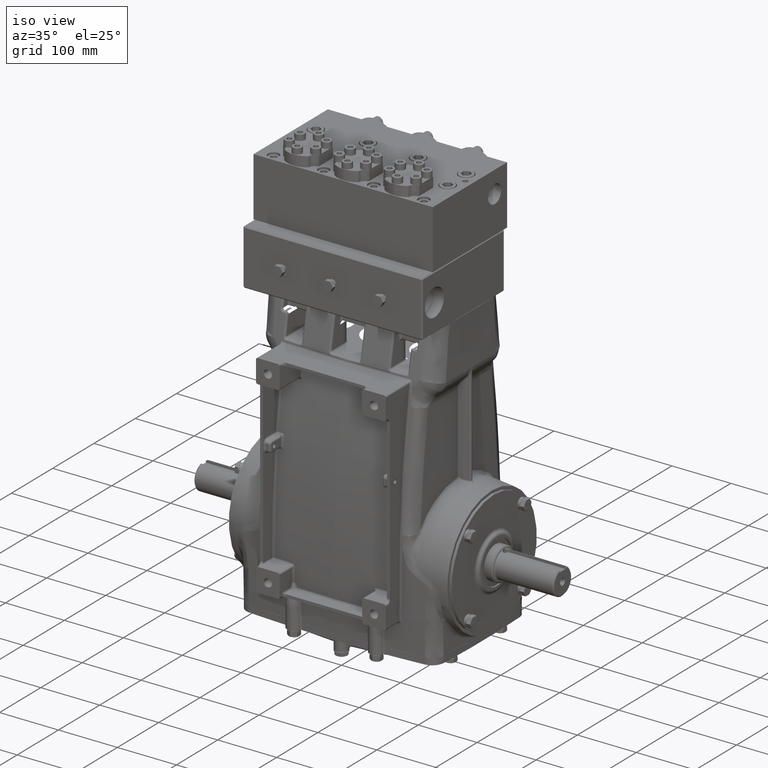
[diagram: clean part render]
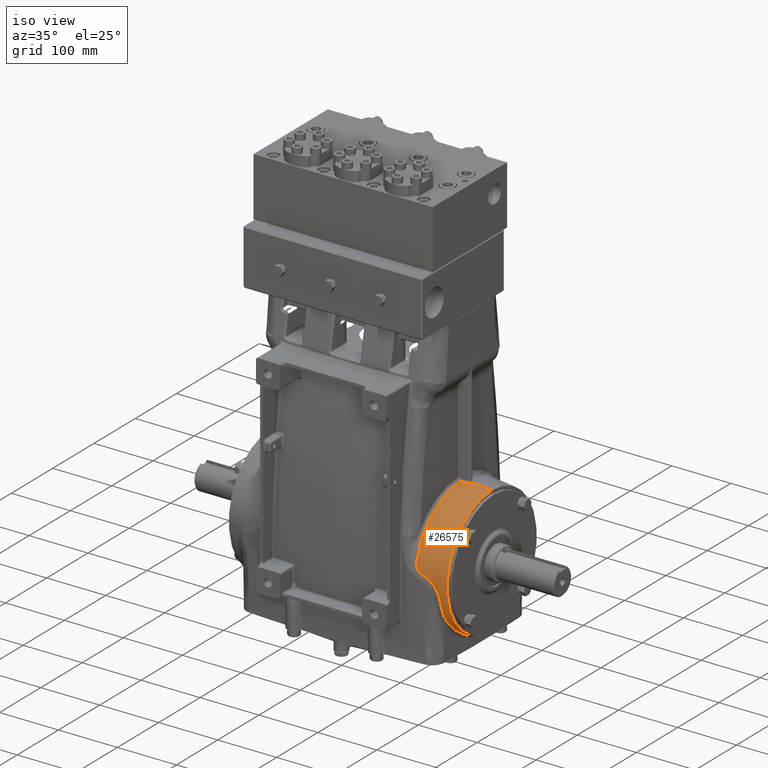
[diagram: same view with one face highlighted and labeled with its STEP entity id]
A machine part, iso view. The second image highlights one B-rep face of the part: STEP entity #26575.
In plain terms, the highlighted toroidal blend (fillet) surface has major radius 1682.47 mm and minor (blend) radius 1800 mm.
Its self-contained STEP definition (entity closure, byte-faithful):
#1526 = CARTESIAN_POINT ( 'NONE',  ( 5.852955202024553216, -0.2223837610835557310, 4.379492462996530833 ) ) ;
#1874 = CARTESIAN_POINT ( 'NONE',  ( 5.272707248386626411, -4.294867719572655673, 1.090123331563444431 ) ) ;
#1933 = CARTESIAN_POINT ( 'NONE',  ( 5.536433083215809070, -0.2630354512652037791, 4.403024985947181058 ) ) ;
#2041 = ORIENTED_EDGE ( 'NONE', *, *, #9779, .T. ) ;
#2049 = EDGE_CURVE ( 'NONE', #63809, #49967, #41670, .T. ) ;
#2296 = CARTESIAN_POINT ( 'NONE',  ( 5.844193351167364270, -4.373260214403690505, 0.3322168157031424318 ) ) ;
#2682 = CARTESIAN_POINT ( 'NONE',  ( 5.247411923045981474, -3.859052718399690107, 2.183396931741775404 ) ) ;
#2989 = CARTESIAN_POINT ( 'NONE',  ( 5.305554065077120462, -3.094440689571299252, 3.172438463871714021 ) ) ;
#3064 = EDGE_CURVE ( 'NONE', #41624, #7347, #22884, .T. ) ;
#3491 = CARTESIAN_POINT ( 'NONE',  ( 5.279394247839360510, -3.954163940247277687, 2.000746350159208653 ) ) ;
#3872 = CARTESIAN_POINT ( 'NONE',  ( 5.852955202024553216, -0.2223837610835557310, 4.379492462996530833 ) ) ;
#4431 = CARTESIAN_POINT ( 'NONE',  ( 6.051648102136713447, -0.02707801973792460515, 4.368323479826626610 ) ) ;
#4692 = EDGE_CURVE ( 'NONE', #57575, #26342, #43030, .T. ) ;
#4996 = CARTESIAN_POINT ( 'NONE',  ( 7.283464566929135131, 0.000000000000000000, 0.000000000000000000 ) ) ;
#6422 = ORIENTED_EDGE ( 'NONE', *, *, #10870, .F. ) ;
#6951 = DIRECTION ( 'NONE',  ( 0.000000000000000000, 0.000000000000000000, -1.000000000000000000 ) ) ;
#7110 = B_SPLINE_CURVE_WITH_KNOTS ( 'NONE', 3,
 ( #7746, #1933, #52739, #1526 ),
 .UNSPECIFIED., .F., .F.,
 ( 4, 4 ),
 ( 0.000000000000000000, 0.01219153341270861821 ),
 .UNSPECIFIED. ) ;
#7347 = VERTEX_POINT ( 'NONE', #63990 ) ;
#7746 = CARTESIAN_POINT ( 'NONE',  ( 5.378102843281687306, -0.2833750621948362136, 4.413794543378174673 ) ) ;
#8441 = DIRECTION ( 'NONE',  ( 0.000000000000000000, 1.224646799147352961E-16, -1.000000000000000000 ) ) ;
#8611 = ORIENTED_EDGE ( 'NONE', *, *, #20914, .F. ) ;
#8853 = ORIENTED_EDGE ( 'NONE', *, *, #58959, .F. ) ;
#8902 = CARTESIAN_POINT ( 'NONE',  ( 5.298679227192500285, -3.999764358339298109, 1.904925093639504574 ) ) ;
#9302 = CARTESIAN_POINT ( 'NONE',  ( 5.517144454320157543, -4.381478763568151358, 0.5205835945631215322 ) ) ;
#9384 = CARTESIAN_POINT ( 'NONE',  ( 6.751257222769448063, -3.973461088132392849, -1.662222356534559964 ) ) ;
#9468 = CARTESIAN_POINT ( 'NONE',  ( 6.865251969672192089, -0.8573492751160255443, -4.210950569600599103 ) ) ;
#9779 = EDGE_CURVE ( 'NONE', #34809, #49967, #20113, .T. ) ;
#9790 = CARTESIAN_POINT ( 'NONE',  ( 6.748286128374594739, -4.228220533290194538, -0.8188450398265303409 ) ) ;
#9906 = CARTESIAN_POINT ( 'NONE',  ( 6.870678561282303143, -7.016679833183544726E-07, -4.293398809832874363 ) ) ;
#10704 = CARTESIAN_POINT ( 'NONE',  ( 6.820232917902483649, -2.577171364062633252, -3.457293053597027210 ) ) ;
#10870 = EDGE_CURVE ( 'NONE', #38661, #63809, #7110, .T. ) ;
#11064 = CARTESIAN_POINT ( 'NONE',  ( 5.999597013839331971, -0.1437538826542380244, 4.370468212335666180 ) ) ;
#12387 = CARTESIAN_POINT ( 'NONE',  ( 6.775299052505742381, -3.525163633873232616, -2.466941749245176840 ) ) ;
#12671 = AXIS2_PLACEMENT_3D ( 'NONE', #51838, #64247, #13437 ) ;
#13437 = DIRECTION ( 'NONE',  ( 0.000000000000000000, 0.000000000000000000, 1.000000000000000000 ) ) ;
#13662 = ORIENTED_EDGE ( 'NONE', *, *, #58756, .F. ) ;
#13773 = CARTESIAN_POINT ( 'NONE',  ( 5.311372473586140508, -2.969675108898805149, 3.288849114587791167 ) ) ;
#13983 = AXIS2_PLACEMENT_3D ( 'NONE', #18945, #81734, #6951 ) ;
#14183 = CARTESIAN_POINT ( 'NONE',  ( 5.344049568516499704, -2.134996431482719892, 3.880213789637583233 ) ) ;
#14580 = CARTESIAN_POINT ( 'NONE',  ( 5.328308740857626624, -2.571147506962262685, 3.607441197599436045 ) ) ;
#14680 = CARTESIAN_POINT ( 'NONE',  ( 5.285113458666180541, -4.270888028797585889, 1.176226875336369604 ) ) ;
#15093 = CARTESIAN_POINT ( 'NONE',  ( 5.451664848992066936, -4.378099481651035241, 0.5877808797868278035 ) ) ;
#15895 = CARTESIAN_POINT ( 'NONE',  ( 5.322501773437188000, -4.086887850304838032, 1.705387865584996554 ) ) ;
#15983 = CARTESIAN_POINT ( 'NONE',  ( 6.732006985056554704, -3.858916769252031198, -1.913639516622791970 ) ) ;
#16068 = CARTESIAN_POINT ( 'NONE',  ( 6.860023595601003166, -1.190177354515004948, -4.129769881778680762 ) ) ;
#17290 = CARTESIAN_POINT ( 'NONE',  ( 6.052903952729693948, 4.590736594374214136E-13, 4.368279199505273880 ) ) ;
#17653 = CARTESIAN_POINT ( 'NONE',  ( 5.985930046695572493, -0.1587953005735745493, 4.371117250021246292 ) ) ;
#18071 = CARTESIAN_POINT ( 'NONE',  ( 5.942668485757020669, -0.1919606028169323908, 4.373437235909047871 ) ) ;
#18829 = B_SPLINE_CURVE_WITH_KNOTS ( 'NONE', 3,
 ( #66965, #66548, #41315, #34713 ),
 .UNSPECIFIED., .F., .F.,
 ( 4, 4 ),
 ( 0.000000000000000000, 1.000000000000000000 ),
 .UNSPECIFIED. ) ;
#18945 = CARTESIAN_POINT ( 'NONE',  ( 0.000000000000000000, 0.000000000000000000, 0.000000000000000000 ) ) ;
#20113 = CIRCLE ( 'NONE', #24068, 70.86614173228348079 ) ;
#20748 = CARTESIAN_POINT ( 'NONE',  ( 5.285113458666180541, -4.270888028797585889, 1.176226875336369604 ) ) ;
#20891 = CARTESIAN_POINT ( 'NONE',  ( 5.422180608947891223, -4.375435119389920580, 0.6238571609670103824 ) ) ;
#20914 = EDGE_CURVE ( 'NONE', #64571, #78984, #63289, .T. ) ;
#21239 = CARTESIAN_POINT ( 'NONE',  ( 0.000000000000000000, 8.111924509794331596E-15, -66.23889039225161923 ) ) ;
#22093 = CARTESIAN_POINT ( 'NONE',  ( 5.315464104699231029, -4.205820647796510769, 1.385050740735087604 ) ) ;
#22884 = B_SPLINE_CURVE_WITH_KNOTS ( 'NONE', 3,
 ( #78265, #40276, #71679, #22902, #59297, #66306, #72904, #72492, #41484, #22093, #53893, #48113, #15895, #8902, #3491, #2682, #60505, #28282 ),
 .UNSPECIFIED., .F., .F.,
 ( 4, 2, 2, 2, 2, 2, 2, 2, 4 ),
 ( 0.000000000000000000, 0.06249999999999822364, 0.09374999999999700240, 0.1093749999999966693, 0.1249999999999962252, 0.2499999999999970024, 0.4999999999999980016, 0.7499999999999990008, 1.000000000000000000 ),
 .UNSPECIFIED. ) ;
#22902 = CARTESIAN_POINT ( 'NONE',  ( 5.299805872300813903, -4.244816495595885364, 1.263305058221047439 ) ) ;
#22996 = CARTESIAN_POINT ( 'NONE',  ( 6.763537446397453579, -4.021914108856399217, -1.537326311682541302 ) ) ;
#23081 = CARTESIAN_POINT ( 'NONE',  ( 6.831004197742318595, -2.294284259440460438, -3.649769598272576854 ) ) ;
#23423 = CARTESIAN_POINT ( 'NONE',  ( 6.743573656633750524, -3.722442431694437115, -2.163832518601332300 ) ) ;
#23831 = EDGE_CURVE ( 'NONE', #26342, #48606, #79479, .T. ) ;
#23846 = CARTESIAN_POINT ( 'NONE',  ( 6.032930112428863012, -0.09242468186657722129, 4.369029578196892416 ) ) ;
#24068 = AXIS2_PLACEMENT_3D ( 'NONE', #21239, #46442, #8441 ) ;
#26342 = VERTEX_POINT ( 'NONE', #9906 ) ;
#26575 = ADVANCED_FACE ( 'NONE', ( #68932 ), #50909, .T. ) ;
#26583 = CARTESIAN_POINT ( 'NONE',  ( 5.373400732647899858, -0.8532227448024319871, 4.343542629447428638 ) ) ;
#27458 = CARTESIAN_POINT ( 'NONE',  ( 5.844193351167364270, -4.373260214403690505, 0.3322168157031424318 ) ) ;
#27505 = CARTESIAN_POINT ( 'NONE',  ( 5.370155640733947244, -4.367796750704077802, 0.7007961736465971869 ) ) ;
#27978 = CARTESIAN_POINT ( 'NONE',  ( 6.775341309454397276, -4.142075560462384232, -1.170764074513447994 ) ) ;
#28138 = CARTESIAN_POINT ( 'NONE',  ( 7.283464566929135131, -5.318640310989227753E-16, 4.251968503937008315 ) ) ;
#28282 = CARTESIAN_POINT ( 'NONE',  ( 5.248968017850662804, -3.757802493684161860, 2.350912471810728821 ) ) ;
#28350 = EDGE_CURVE ( 'NONE', #78984, #41624, #68894, .T. ) ;
#28456 = CARTESIAN_POINT ( 'NONE',  ( 6.780627805836091149, -3.426737915178359906, -2.606695610396578378 ) ) ;
#28916 = CARTESIAN_POINT ( 'NONE',  ( 7.283464566929135131, 0.000000000000000000, -4.251968503937008315 ) ) ;
#29225 = CARTESIAN_POINT ( 'NONE',  ( 6.016060877531117512, -0.1219615921566095523, 4.369730204853508937 ) ) ;
#29341 = CARTESIAN_POINT ( 'NONE',  ( 6.259927872760701284, -4.349469049773776241, 0.1078216968110770335 ) ) ;
#29604 = CARTESIAN_POINT ( 'NONE',  ( 6.733010291754432330, -3.759610759201880370, -2.101901146844580293 ) ) ;
#29761 = CARTESIAN_POINT ( 'NONE',  ( 6.771535892921622946, -3.594669634161339999, -2.368249819606353057 ) ) ;
#30137 = AXIS2_PLACEMENT_3D ( 'NONE', #4996, #43379, #55785 ) ;
#30448 = CARTESIAN_POINT ( 'NONE',  ( 5.880136266687283175, -0.2188931460258252415, 4.377414182146014632 ) ) ;
#31955 = VERTEX_POINT ( 'NONE', #59237 ) ;
#33266 = CARTESIAN_POINT ( 'NONE',  ( 5.752441769183374021, -4.378549673246697971, 0.3628208985375411810 ) ) ;
#34173 = CARTESIAN_POINT ( 'NONE',  ( 6.775255238092878329, -4.106237101414809132, -1.291628640390572569 ) ) ;
#34488 = CARTESIAN_POINT ( 'NONE',  ( 5.276690929012856301, -4.283285936618400846, 1.133582297244710269 ) ) ;
#34645 = CARTESIAN_POINT ( 'NONE',  ( 6.856809519440165701, -1.354194542049224292, -4.079312160929956299 ) ) ;
#34713 = CARTESIAN_POINT ( 'NONE',  ( 5.282505213801603539, -3.545457832260765052, 2.656209857009934616 ) ) ;
#34798 = B_SPLINE_CURVE_WITH_KNOTS ( 'NONE', 3,
 ( #23423, #29604, #41580, #15983, #65975, #9384, #22996, #34173, #27978, #66394, #9790, #60183 ),
 .UNSPECIFIED., .F., .F.,
 ( 4, 2, 2, 2, 2, 4 ),
 ( 0.000000000000000000, 0.1250000000000000000, 0.2500000000000000555, 0.5000000000000001110, 0.7499999999999998890, 1.000000000000000000 ),
 .UNSPECIFIED. ) ;
#34809 = VERTEX_POINT ( 'NONE', #28138 ) ;
#35135 = CARTESIAN_POINT ( 'NONE',  ( 6.674896930597528311, -4.288025212472038383, -0.4690990319293643629 ) ) ;
#35434 = CARTESIAN_POINT ( 'NONE',  ( 6.042792963683599083, -0.06715152792656177427, 4.368647610304564388 ) ) ;
#35547 = CARTESIAN_POINT ( 'NONE',  ( 6.504362361912054524, -4.326456405689325990, -0.1516320365700909445 ) ) ;
#35836 = CARTESIAN_POINT ( 'NONE',  ( 6.046612562164687787, -0.05385365598223208067, 4.368506876215717760 ) ) ;
#35889 = CARTESIAN_POINT ( 'NONE',  ( 6.803225976632730543, -2.967570816868583705, -3.116539558899000362 ) ) ;
#36240 = CARTESIAN_POINT ( 'NONE',  ( 6.012157633394848766, -0.1276479792505829658, 4.369899943126782205 ) ) ;
#37658 = CARTESIAN_POINT ( 'NONE',  ( 5.378102843281687306, -0.2833750621948362136, 4.413794543378174673 ) ) ;
#37712 = CARTESIAN_POINT ( 'NONE',  ( 6.730573574017554073, -4.248874556953237125, -0.7046321130404791244 ) ) ;
#38661 = VERTEX_POINT ( 'NONE', #37658 ) ;
#39334 = CARTESIAN_POINT ( 'NONE',  ( 6.867266521373065480, -0.6885383341263118240, -4.241673272837122255 ) ) ;
#39382 = CIRCLE ( 'NONE', #30137, 4.251968503937008315 ) ;
#39767 = CARTESIAN_POINT ( 'NONE',  ( 5.377352623213219829, -0.4354959281146131844, 4.402113073354612993 ) ) ;
#40276 = CARTESIAN_POINT ( 'NONE',  ( 5.290179843234319002, -4.263148164130325490, 1.202848317234838982 ) ) ;
#40591 = CARTESIAN_POINT ( 'NONE',  ( 5.288053677425562427, -3.443327533752565284, 2.791839688988303259 ) ) ;
#41315 = CARTESIAN_POINT ( 'NONE',  ( 5.278467523605470113, -3.619785628708668046, 2.557501920180432986 ) ) ;
#41484 = CARTESIAN_POINT ( 'NONE',  ( 5.307703139059694486, -4.226235704353477729, 1.322113040682073803 ) ) ;
#41580 = CARTESIAN_POINT ( 'NONE',  ( 6.730431514793499659, -3.794206176304970146, -2.039252113399374622 ) ) ;
#41624 = VERTEX_POINT ( 'NONE', #20748 ) ;
#41670 = B_SPLINE_CURVE_WITH_KNOTS ( 'NONE', 3,
 ( #54415, #30448, #80852, #18071, #74647, #55251, #17653, #11064, #73443, #36240, #29225, #80055, #23846, #35434, #35836, #4431, #68464, #61857 ),
 .UNSPECIFIED., .F., .F.,
 ( 4, 2, 2, 2, 2, 2, 2, 2, 4 ),
 ( 2.602085213965210642E-18, 0.002085868833822871263, 0.003128803250734268730, 0.004171737667645666198, 0.004693204876101364498, 0.005214672084557062798, 0.006257606501468459398, 0.007300540918379855998, 0.008343475335291252598 ),
 .UNSPECIFIED. ) ;
#43030 = CIRCLE ( 'NONE', #12671, 70.86614173228348079 ) ;
#43379 = DIRECTION ( 'NONE',  ( 1.000000000000000000, -0.000000000000000000, -0.000000000000000000 ) ) ;
#43759 = CARTESIAN_POINT ( 'NONE',  ( 6.743573656633750524, -3.722442431694437115, -2.163832518601332300 ) ) ;
#45104 = B_SPLINE_CURVE_WITH_KNOTS ( 'NONE', 3,
 ( #72007, #40591, #59604, #2989, #13773, #71179, #14580, #45565, #14183, #70781, #64177, #26583, #59207, #39767, #52587, #64989 ),
 .UNSPECIFIED., .F., .F.,
 ( 4, 2, 2, 2, 2, 2, 2, 4 ),
 ( 0.000000000000000000, 0.06249999999999981265, 0.1249999999999998890, 0.1874999999999999722, 0.2499999999999999167, 0.3749999999999999445, 0.4374999999999998890, 0.4653631817733545617 ),
 .UNSPECIFIED. ) ;
#45565 = CARTESIAN_POINT ( 'NONE',  ( 5.338943917364209923, -2.285139189378898372, 3.794135518375914895 ) ) ;
#46083 = CARTESIAN_POINT ( 'NONE',  ( 5.273521173928103600, -4.316198074921146599, 1.002074648580723704 ) ) ;
#46442 = DIRECTION ( 'NONE',  ( -0.000000000000000000, -1.000000000000000000, -1.224646799147353207E-16 ) ) ;
#46902 = CARTESIAN_POINT ( 'NONE',  ( 5.311215853565403044, -4.350439889477999422, 0.8259253959107824006 ) ) ;
#48113 = CARTESIAN_POINT ( 'NONE',  ( 5.327369154454038913, -4.128414184250209118, 1.601633837591599718 ) ) ;
#48183 = EDGE_LOOP ( 'NONE', ( #73577, #2041, #50497, #6422, #60793, #13662, #78121, #56994, #8611, #63441, #8853, #57159, #53562 ) ) ;
#48606 = VERTEX_POINT ( 'NONE', #12387 ) ;
#49967 = VERTEX_POINT ( 'NONE', #17290 ) ;
#50497 = ORIENTED_EDGE ( 'NONE', *, *, #2049, .F. ) ;
#50909 = TOROIDAL_SURFACE ( 'NONE', #13983, -66.23889039225161923, 70.86614173228348079 ) ;
#51838 = CARTESIAN_POINT ( 'NONE',  ( 0.000000000000000000, 0.000000000000000000, 66.23889039225161923 ) ) ;
#51870 = CARTESIAN_POINT ( 'NONE',  ( 5.278511238699726604, -4.326054984233339340, 0.9568815762273599201 ) ) ;
#52587 = CARTESIAN_POINT ( 'NONE',  ( 5.377815371067063310, -0.3594241006390922477, 4.408939327671739683 ) ) ;
#52739 = CARTESIAN_POINT ( 'NONE',  ( 5.694718583531803269, -0.2427046399766175089, 4.391591331754729488 ) ) ;
#53562 = ORIENTED_EDGE ( 'NONE', *, *, #4692, .F. ) ;
#53893 = CARTESIAN_POINT ( 'NONE',  ( 5.320181055550555094, -4.186943851295666263, 1.439956401314596901 ) ) ;
#54415 = CARTESIAN_POINT ( 'NONE',  ( 5.852955202024553216, -0.2223837610835557310, 4.379492462996530833 ) ) ;
#54536 = CARTESIAN_POINT ( 'NONE',  ( 6.063010974450983248, -4.361299790465952952, 0.2416503100473325338 ) ) ;
#54890 = CARTESIAN_POINT ( 'NONE',  ( 6.797453669186131364, -3.091044709187977801, -2.994833256767561291 ) ) ;
#54959 = CARTESIAN_POINT ( 'NONE',  ( 5.957380465006142600, -4.366734994922595980, 0.2944629286120181155 ) ) ;
#55251 = CARTESIAN_POINT ( 'NONE',  ( 5.975948389439833974, -0.1679853590259798024, 4.371616470171745483 ) ) ;
#55785 = DIRECTION ( 'NONE',  ( 0.000000000000000000, 0.000000000000000000, -1.000000000000000000 ) ) ;
#56994 = ORIENTED_EDGE ( 'NONE', *, *, #28350, .F. ) ;
#57159 = ORIENTED_EDGE ( 'NONE', *, *, #23831, .F. ) ;
#57575 = VERTEX_POINT ( 'NONE', #28916 ) ;
#57835 = CARTESIAN_POINT ( 'NONE',  ( 6.743573656633750524, -3.722442431694437115, -2.163832518601332300 ) ) ;
#58351 = CARTESIAN_POINT ( 'NONE',  ( 6.775299052505742381, -3.525163633873232616, -2.466941749245176840 ) ) ;
#58484 = CARTESIAN_POINT ( 'NONE',  ( 5.553569142335997633, -4.382189830934098751, 0.4891519038229651950 ) ) ;
#58756 = EDGE_CURVE ( 'NONE', #7347, #31955, #18829, .T. ) ;
#58959 = EDGE_CURVE ( 'NONE', #48606, #69859, #63167, .T. ) ;
#59207 = CARTESIAN_POINT ( 'NONE',  ( 5.375420266069645514, -0.6822647268944620480, 4.373525624403557188 ) ) ;
#59237 = CARTESIAN_POINT ( 'NONE',  ( 5.282505213801603539, -3.545457832260765052, 2.656209857009934616 ) ) ;
#59297 = CARTESIAN_POINT ( 'NONE',  ( 5.301513587772767266, -4.241065876739050111, 1.275395351692067303 ) ) ;
#59604 = CARTESIAN_POINT ( 'NONE',  ( 5.293885321776455655, -3.331500122489506666, 2.923830909242965514 ) ) ;
#60183 = CARTESIAN_POINT ( 'NONE',  ( 6.730573574017554073, -4.248874556953237125, -0.7046321130404791244 ) ) ;
#60268 = CARTESIAN_POINT ( 'NONE',  ( 6.870678561282303143, -7.016679833183544726E-07, -4.293398809832874363 ) ) ;
#60341 = CARTESIAN_POINT ( 'NONE',  ( 6.570975589574199915, -4.316040146981690917, -0.2514695378122006053 ) ) ;
#60505 = CARTESIAN_POINT ( 'NONE',  ( 5.234225257058304770, -3.809517413784972995, 2.270313626734621781 ) ) ;
#60745 = CARTESIAN_POINT ( 'NONE',  ( 6.348136780457695139, -4.343236860099165320, 0.02920417599440181325 ) ) ;
#60793 = ORIENTED_EDGE ( 'NONE', *, *, #81175, .F. ) ;
#61153 = CARTESIAN_POINT ( 'NONE',  ( 6.730573574017554073, -4.248874556953237125, -0.7046321130404791244 ) ) ;
#61857 = CARTESIAN_POINT ( 'NONE',  ( 6.052903952729693948, 4.590736594374214136E-13, 4.368279199505273880 ) ) ;
#63167 = B_SPLINE_CURVE_WITH_KNOTS ( 'NONE', 3,
 ( #80566, #29761, #75171, #43759 ),
 .UNSPECIFIED., .F., .F.,
 ( 4, 4 ),
 ( 0.000000000000000000, 1.000000000000000000 ),
 .UNSPECIFIED. ) ;
#63289 = B_SPLINE_CURVE_WITH_KNOTS ( 'NONE', 3,
 ( #61153, #73560, #35135, #60341, #35547, #60745, #29341, #54536, #54959, #79752 ),
 .UNSPECIFIED., .F., .F.,
 ( 4, 2, 2, 2, 4 ),
 ( 0.000000000000000000, 0.2500000000000000555, 0.5000000000000001110, 0.7500000000000000000, 1.000000000000000000 ),
 .UNSPECIFIED. ) ;
#63441 = ORIENTED_EDGE ( 'NONE', *, *, #77257, .F. ) ;
#63809 = VERTEX_POINT ( 'NONE', #3872 ) ;
#63990 = CARTESIAN_POINT ( 'NONE',  ( 5.248968017850662804, -3.757802493684161860, 2.350912471810728821 ) ) ;
#64177 = CARTESIAN_POINT ( 'NONE',  ( 5.365597495042436549, -1.353068426089314658, 4.225720502997361017 ) ) ;
#64247 = DIRECTION ( 'NONE',  ( 0.000000000000000000, 1.000000000000000000, 0.000000000000000000 ) ) ;
#64280 = CARTESIAN_POINT ( 'NONE',  ( 5.297384130751114029, -4.343116918726747322, 0.8690214124529990203 ) ) ;
#64571 = VERTEX_POINT ( 'NONE', #37712 ) ;
#64957 = CARTESIAN_POINT ( 'NONE',  ( 6.870678530203542245, -0.1720728890904953401, -4.293398419480259243 ) ) ;
#64989 = CARTESIAN_POINT ( 'NONE',  ( 5.378102843281687306, -0.2833750621948362136, 4.413794543378174673 ) ) ;
#65975 = CARTESIAN_POINT ( 'NONE',  ( 6.736243522958344165, -3.889031762591969699, -1.850662277113944709 ) ) ;
#66306 = CARTESIAN_POINT ( 'NONE',  ( 5.303892820876529690, -4.235364386024500050, 1.293545344551159992 ) ) ;
#66394 = CARTESIAN_POINT ( 'NONE',  ( 6.761727431523616438, -4.203109578714765426, -0.9341256212713701101 ) ) ;
#66548 = CARTESIAN_POINT ( 'NONE',  ( 5.266783294543670557, -3.690078852058993331, 2.456532176193368944 ) ) ;
#66965 = CARTESIAN_POINT ( 'NONE',  ( 5.248968017850662804, -3.757802493684161860, 2.350912471810728821 ) ) ;
#67288 = CARTESIAN_POINT ( 'NONE',  ( 6.849293816668655666, -1.677305411128051427, -3.958225599555296625 ) ) ;
#68464 = CARTESIAN_POINT ( 'NONE',  ( 6.052903952729724146, -0.01358924244932660334, 4.368279199505265886 ) ) ;
#68894 = B_SPLINE_CURVE_WITH_KNOTS ( 'NONE', 3,
 ( #2296, #33266, #71277, #58484, #9302, #15093, #20891, #27505, #70883, #46902, #64280, #51870, #46083, #1874, #34488, #14680 ),
 .UNSPECIFIED., .F., .F.,
 ( 4, 2, 2, 2, 2, 2, 2, 4 ),
 ( 0.000000000000000000, 0.2499999999999999722, 0.3749999999999999445, 0.4999999999999999445, 0.6250000000000000000, 0.7500000000000001110, 0.8750000000000001110, 1.000000000000000000 ),
 .UNSPECIFIED. ) ;
#68932 = FACE_OUTER_BOUND ( 'NONE', #48183, .T. ) ;
#69741 = EDGE_CURVE ( 'NONE', #34809, #57575, #39382, .T. ) ;
#69859 = VERTEX_POINT ( 'NONE', #57835 ) ;
#70740 = CARTESIAN_POINT ( 'NONE',  ( 6.786171254222925775, -3.320246566427418333, -2.740235549102072898 ) ) ;
#70781 = CARTESIAN_POINT ( 'NONE',  ( 5.358046067866272466, -1.673599480615437951, 4.110052112684207337 ) ) ;
#70883 = CARTESIAN_POINT ( 'NONE',  ( 5.347494826495777787, -4.362772443184317339, 0.7419393692634154158 ) ) ;
#71179 = CARTESIAN_POINT ( 'NONE',  ( 5.322749559056495272, -2.708028963819975043, 3.506351055006565520 ) ) ;
#71277 = CARTESIAN_POINT ( 'NONE',  ( 5.668512087479173012, -4.381852701309738585, 0.4054394886647750273 ) ) ;
#71679 = CARTESIAN_POINT ( 'NONE',  ( 5.294320405627882309, -4.255927776831506471, 1.227032192893521945 ) ) ;
#72007 = CARTESIAN_POINT ( 'NONE',  ( 5.282505213801603539, -3.545457832260765052, 2.656209857009934616 ) ) ;
#72492 = CARTESIAN_POINT ( 'NONE',  ( 5.306807047703272495, -4.228492605052468711, 1.315103720534510856 ) ) ;
#72904 = CARTESIAN_POINT ( 'NONE',  ( 5.304948430814573790, -4.232983096580960947, 1.301052481152182194 ) ) ;
#73443 = CARTESIAN_POINT ( 'NONE',  ( 6.003933782651904139, -0.1385294359539331333, 4.370268617285306689 ) ) ;
#73560 = CARTESIAN_POINT ( 'NONE',  ( 6.711678415461276970, -4.270536819406161477, -0.5849073450232642468 ) ) ;
#73577 = ORIENTED_EDGE ( 'NONE', *, *, #69741, .F. ) ;
#74647 = CARTESIAN_POINT ( 'NONE',  ( 5.954211097773785433, -0.1846568699069695840, 4.372781866904869474 ) ) ;
#75171 = CARTESIAN_POINT ( 'NONE',  ( 6.760221710969719133, -3.661085097078466966, -2.266218849696678195 ) ) ;
#77257 = EDGE_CURVE ( 'NONE', #69859, #64571, #34798, .T. ) ;
#78121 = ORIENTED_EDGE ( 'NONE', *, *, #3064, .F. ) ;
#78265 = CARTESIAN_POINT ( 'NONE',  ( 5.285113458666180541, -4.270888028797585889, 1.176226875336369604 ) ) ;
#78984 = VERTEX_POINT ( 'NONE', #27458 ) ;
#79251 = CARTESIAN_POINT ( 'NONE',  ( 6.844976943045456785, -1.836602922779768887, -3.887309124524160886 ) ) ;
#79479 = B_SPLINE_CURVE_WITH_KNOTS ( 'NONE', 3,
 ( #60268, #64957, #79685, #39334, #9468, #16068, #34645, #67288, #79251, #23081, #10704, #35889, #54890, #70740, #28456, #58351 ),
 .UNSPECIFIED., .F., .F.,
 ( 4, 2, 2, 2, 2, 2, 2, 4 ),
 ( 0.5000664358783543095, 0.5625000000000000000, 0.6250000000000000000, 0.6875000000000000000, 0.7500000000000000000, 0.8749999999999998890, 0.9375000000000000000, 1.000000000000000000 ),
 .UNSPECIFIED. ) ;
#79685 = CARTESIAN_POINT ( 'NONE',  ( 6.869983395147334804, -0.3462356915617458841, -4.282950251676404640 ) ) ;
#79752 = CARTESIAN_POINT ( 'NONE',  ( 5.844193351167364270, -4.373260214403690505, 0.3322168157031424318 ) ) ;
#80055 = CARTESIAN_POINT ( 'NONE',  ( 6.026868015031253911, -0.1045497459394401640, 4.369271410216344798 ) ) ;
#80566 = CARTESIAN_POINT ( 'NONE',  ( 6.775299052505742381, -3.525163633873232616, -2.466941749245176840 ) ) ;
#80852 = CARTESIAN_POINT ( 'NONE',  ( 5.906600935789874995, -0.2106106395662807607, 4.375624426149733459 ) ) ;
#81175 = EDGE_CURVE ( 'NONE', #31955, #38661, #45104, .T. ) ;
#81734 = DIRECTION ( 'NONE',  ( -1.000000000000000000, 0.000000000000000000, 0.000000000000000000 ) ) ;